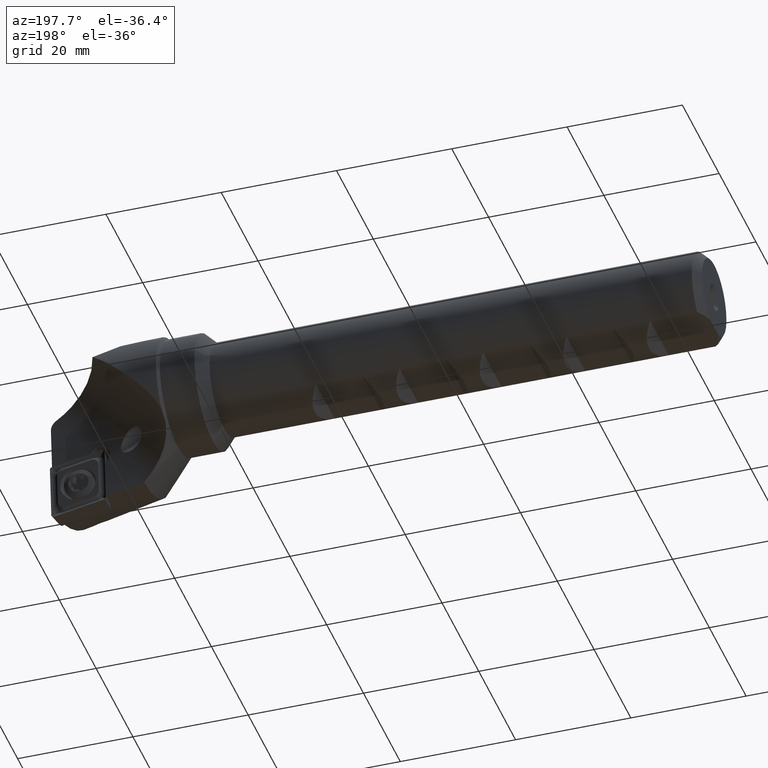
[diagram: clean part render]
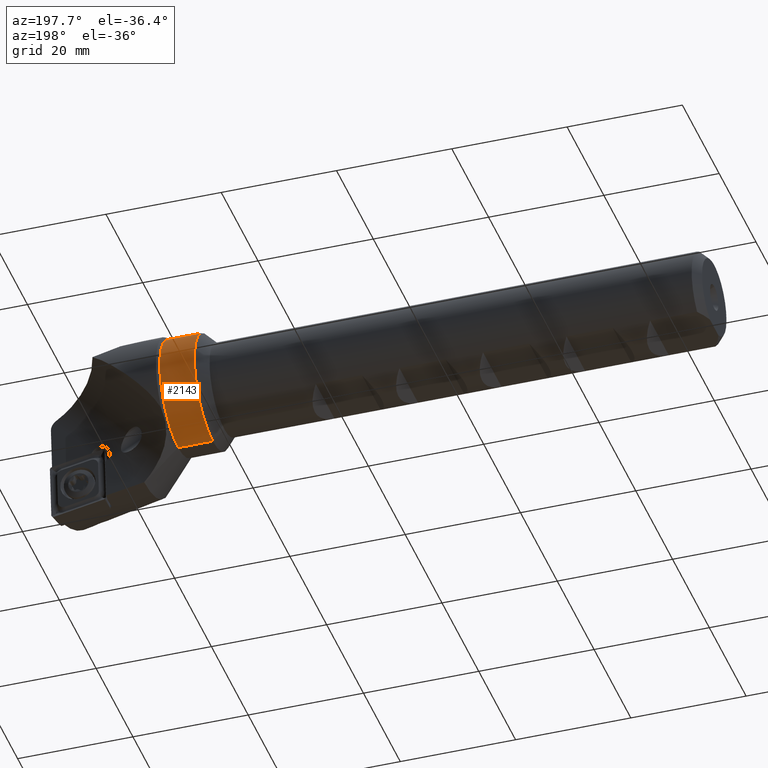
[diagram: same view with one face highlighted and labeled with its STEP entity id]
A machine part, auxiliary view. The second image highlights one B-rep face of the part: STEP entity #2143.
In plain terms, the highlighted cylindrical surface (partial cylindrical patch) has radius 10 mm, axis along (-1, -0, -0).
Its self-contained STEP definition (entity closure, byte-faithful):
#83 = CARTESIAN_POINT ( 'NONE',  ( 87.00000000000000000, 1.224646799147353300E-015, -10.00000000000000000 ) ) ;
#84 = CARTESIAN_POINT ( 'NONE',  ( 93.00000000000000000, 0.0000000000000000000, -10.00000000000000000 ) ) ;
#85 = CARTESIAN_POINT ( 'NONE',  ( 87.00000000000000000, 0.0000000000000000000, 10.00000000000000000 ) ) ;
#114 = CARTESIAN_POINT ( 'NONE',  ( 93.00000000000000000, 1.583028403175448600E-015, 10.00000000000000000 ) ) ;
#623 = AXIS2_PLACEMENT_3D ( 'NONE', #2852, #2851, #2844 ) ;
#676 = AXIS2_PLACEMENT_3D ( 'NONE', #3116, #3117, #3118 ) ;
#677 = AXIS2_PLACEMENT_3D ( 'NONE', #3122, #3123, #3124 ) ;
#942 = ORIENTED_EDGE ( 'NONE', *, *, #2223, .T. ) ;
#943 = ORIENTED_EDGE ( 'NONE', *, *, #2224, .T. ) ;
#944 = ORIENTED_EDGE ( 'NONE', *, *, #2221, .F. ) ;
#945 = ORIENTED_EDGE ( 'NONE', *, *, #2225, .F. ) ;
#1350 = VERTEX_POINT ( 'NONE', #114 ) ;
#1379 = VERTEX_POINT ( 'NONE', #85 ) ;
#1380 = VERTEX_POINT ( 'NONE', #84 ) ;
#1381 = VERTEX_POINT ( 'NONE', #83 ) ;
#1635 = FACE_OUTER_BOUND ( 'NONE', #4776, .T. ) ;
#1641 = CYLINDRICAL_SURFACE ( 'NONE', #623, 10.00000000000000000 ) ;
#1763 = CIRCLE ( 'NONE', #676, 10.00000000000000000 ) ;
#1765 = CIRCLE ( 'NONE', #677, 10.00000000000000000 ) ;
#1768 = LINE ( 'NONE', #3121, #1772 ) ;
#1771 = LINE ( 'NONE', #3125, #1774 ) ;
#1772 = VECTOR ( 'NONE', #3119, 1000.000000000000000 ) ;
#1774 = VECTOR ( 'NONE', #3127, 1000.000000000000000 ) ;
#2143 = ADVANCED_FACE ( 'NONE', ( #1635 ), #1641, .T. ) ;
#2221 = EDGE_CURVE ( 'NONE', #1379, #1381, #1763, .T. ) ;
#2223 = EDGE_CURVE ( 'NONE', #1350, #1380, #1765, .T. ) ;
#2224 = EDGE_CURVE ( 'NONE', #1380, #1381, #1768, .T. ) ;
#2225 = EDGE_CURVE ( 'NONE', #1350, #1379, #1771, .T. ) ;
#2844 = DIRECTION ( 'NONE',  ( 0.0000000000000000000, 0.0000000000000000000, 1.000000000000000000 ) ) ;
#2851 = DIRECTION ( 'NONE',  ( -1.000000000000000000, -0.0000000000000000000, -0.0000000000000000000 ) ) ;
#2852 = CARTESIAN_POINT ( 'NONE',  ( -3.175455607189903200, 0.0000000000000000000, 0.0000000000000000000 ) ) ;
#3116 = CARTESIAN_POINT ( 'NONE',  ( 87.00000000000000000, 0.0000000000000000000, 0.0000000000000000000 ) ) ;
#3117 = DIRECTION ( 'NONE',  ( -1.000000000000000000, -0.0000000000000000000, -0.0000000000000000000 ) ) ;
#3118 = DIRECTION ( 'NONE',  ( 0.0000000000000000000, 0.0000000000000000000, 1.000000000000000000 ) ) ;
#3119 = DIRECTION ( 'NONE',  ( -1.000000000000000000, -0.0000000000000000000, -0.0000000000000000000 ) ) ;
#3121 = CARTESIAN_POINT ( 'NONE',  ( -3.175455607189903200, 1.224646799147353300E-015, -10.00000000000000000 ) ) ;
#3122 = CARTESIAN_POINT ( 'NONE',  ( 93.00000000000000000, 0.0000000000000000000, 0.0000000000000000000 ) ) ;
#3123 = DIRECTION ( 'NONE',  ( -1.000000000000000000, -0.0000000000000000000, -0.0000000000000000000 ) ) ;
#3124 = DIRECTION ( 'NONE',  ( 0.0000000000000000000, 0.0000000000000000000, 1.000000000000000000 ) ) ;
#3125 = CARTESIAN_POINT ( 'NONE',  ( -3.175455607189903200, 0.0000000000000000000, 10.00000000000000000 ) ) ;
#3127 = DIRECTION ( 'NONE',  ( -1.000000000000000000, -0.0000000000000000000, -0.0000000000000000000 ) ) ;
#4776 = EDGE_LOOP ( 'NONE', ( #942, #943, #944, #945 ) ) ;